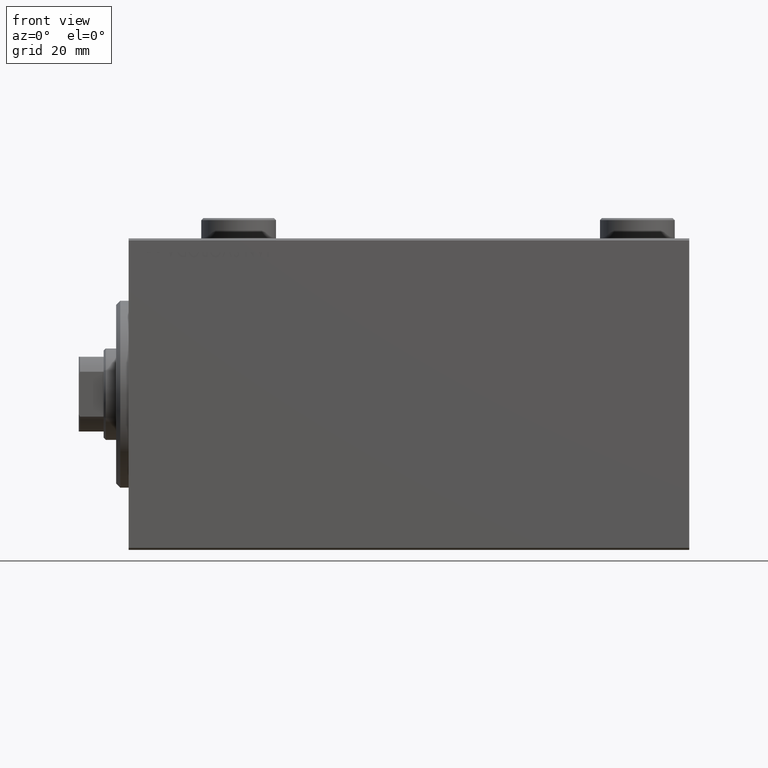
[diagram: clean part render]
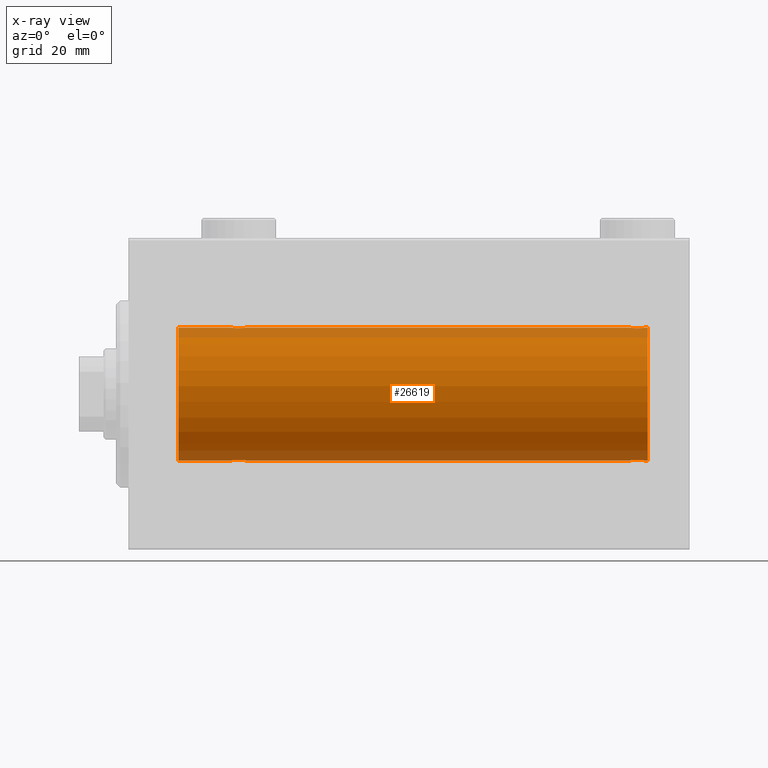
[diagram: x-ray — body ghosted, one internal face saturated and labeled with its STEP entity id]
A machine part, front view, then the same camera in x-ray: the body is ghosted and one INTERNAL B-rep face — a face not visible from any outside direction — is saturated and labeled: STEP entity #26619.
In plain terms, the highlighted cylindrical surface (partial cylindrical patch) has radius 16 mm, axis along (-1, -0, -0).
Its self-contained STEP definition (entity closure, byte-faithful):
#99 = CARTESIAN_POINT ( 'NONE',  ( 27.50320784791317763, -1.735114343256362712, -15.90580722143557502 ) ) ;
#307 = CARTESIAN_POINT ( 'NONE',  ( 121.9833599891894522, -1.936513707523815908, -15.88239801746205870 ) ) ;
#333 = CARTESIAN_POINT ( 'NONE',  ( 124.0976313595719915, -1.231048876942789416, 15.95364199493483071 ) ) ;
#335 = CARTESIAN_POINT ( 'NONE',  ( 24.90236864042802267, -1.231048876942801407, -15.95364199493483426 ) ) ;
#1520 = EDGE_CURVE ( 'NONE', #3629, #35697, #45422, .T. ) ;
#1615 = EDGE_CURVE ( 'NONE', #2116, #12652, #16663, .T. ) ;
#1673 = EDGE_CURVE ( 'NONE', #34976, #28772, #6046, .T. ) ;
#1752 = CARTESIAN_POINT ( 'NONE',  ( 28.49999999999999289, -0.2645044045393371013, 16.00000000000000000 ) ) ;
#2116 = VERTEX_POINT ( 'NONE', #5927 ) ;
#3098 = CARTESIAN_POINT ( 'NONE',  ( 122.7608282034936593, -1.987201773464430499, 15.87613558886576115 ) ) ;
#3100 = CARTESIAN_POINT ( 'NONE',  ( 28.24816627006211078, -1.005876079953899049, -15.97016854943970188 ) ) ;
#3511 = CARTESIAN_POINT ( 'NONE',  ( 120.9023686404279943, -1.231048876942810066, -15.95364199493483426 ) ) ;
#3629 = VERTEX_POINT ( 'NONE', #33905 ) ;
#3766 = CARTESIAN_POINT ( 'NONE',  ( 25.85623329282660166, -1.898087287925298794, -15.88709570026284545 ) ) ;
#4201 = CARTESIAN_POINT ( 'NONE',  ( 123.7202803347841638, -1.589957129871029551, -15.92097237843275259 ) ) ;
#5133 = DIRECTION ( 'NONE',  ( -1.000000000000000000, 0.000000000000000000, 0.000000000000000000 ) ) ;
#5187 = EDGE_CURVE ( 'NONE', #35697, #8183, #33354, .T. ) ;
#5617 = EDGE_CURVE ( 'NONE', #29792, #31596, #42388, .T. ) ;
#5905 = CARTESIAN_POINT ( 'NONE',  ( 11.99999999999999645, 1.959434878635765131E-15, -16.00000000000000000 ) ) ;
#5927 = CARTESIAN_POINT ( 'NONE',  ( 24.50000000000000000, -2.739635037742051899E-23, 16.00000000000000000 ) ) ;
#6046 = LINE ( 'NONE', #37195, #38684 ) ;
#6478 = VECTOR ( 'NONE', #37288, 1000.000000000000000 ) ;
#6789 = CARTESIAN_POINT ( 'NONE',  ( 25.98335998918949841, -1.936513707523809469, -15.88239801746204805 ) ) ;
#6983 = CARTESIAN_POINT ( 'NONE',  ( 122.7637046287817810, -1.986819684797424879, -15.87618369521983830 ) ) ;
#7521 = CARTESIAN_POINT ( 'NONE',  ( 24.75183372993787856, -1.005876079953904600, 15.97016854943970543 ) ) ;
#8183 = VERTEX_POINT ( 'NONE', #5905 ) ;
#8889 = CARTESIAN_POINT ( 'NONE',  ( 28.09763135957198799, -1.231048876942802961, 15.95364199493483781 ) ) ;
#8932 = VERTEX_POINT ( 'NONE', #14542 ) ;
#9126 = CARTESIAN_POINT ( 'NONE',  ( 27.71821872840285295, -1.591545514129674821, 15.92081325887754595 ) ) ;
#9210 = VERTEX_POINT ( 'NONE', #10581 ) ;
#9524 = AXIS2_PLACEMENT_3D ( 'NONE', #22672, #5133, #11840 ) ;
#9562 = CARTESIAN_POINT ( 'NONE',  ( 120.5524885896873144, -0.5244724041436339412, 15.99321727742820975 ) ) ;
#10241 = VERTEX_POINT ( 'NONE', #25055 ) ;
#10250 = CARTESIAN_POINT ( 'NONE',  ( 122.3663333682438434, -1.999904855391108960, 15.87451985347843042 ) ) ;
#10252 = CARTESIAN_POINT ( 'NONE',  ( 24.50000000000000711, -0.2645044045393414311, -16.00000000000000355 ) ) ;
#10448 = CARTESIAN_POINT ( 'NONE',  ( 123.3884614082928550, -1.796613193944152531, -15.89889131367403685 ) ) ;
#10475 = CARTESIAN_POINT ( 'NONE',  ( 123.7182187284028743, -1.591545514129673267, 15.92081325887754595 ) ) ;
#10581 = CARTESIAN_POINT ( 'NONE',  ( 28.49999999999999645, -1.207828523974853969E-15, 16.00000000000000000 ) ) ;
#10668 = CARTESIAN_POINT ( 'NONE',  ( 124.5000000000000284, -0.2611263091397175717, -16.00000000000000711 ) ) ;
#10693 = CARTESIAN_POINT ( 'NONE',  ( 123.1437667071734410, -1.898087287925297462, 15.88709570026284545 ) ) ;
#10695 = CARTESIAN_POINT ( 'NONE',  ( 26.63366663175618498, -1.999904855391105851, -15.87451985347842687 ) ) ;
#10923 = CARTESIAN_POINT ( 'NONE',  ( 121.4967921520868401, -1.735114343256368485, 15.90580722143557502 ) ) ;
#10925 = CARTESIAN_POINT ( 'NONE',  ( 26.23917179650637266, -1.987201773464430055, -15.87613558886576470 ) ) ;
#11129 = CARTESIAN_POINT ( 'NONE',  ( 124.2481662700621143, -1.005876079953903490, -15.97016854943970188 ) ) ;
#11252 = CARTESIAN_POINT ( 'NONE',  ( 124.5000000000000142, 1.959434851248285101E-15, -16.00000000000000000 ) ) ;
#11840 = DIRECTION ( 'NONE',  ( 0.000000000000000000, 0.000000000000000000, 1.000000000000000000 ) ) ;
#12176 = VECTOR ( 'NONE', #40277, 1000.000000000000000 ) ;
#12294 = CARTESIAN_POINT ( 'NONE',  ( 125.0000000000000000, 0.000000000000000000, 16.00000000000000000 ) ) ;
#12303 = EDGE_CURVE ( 'NONE', #8932, #9210, #12834, .T. ) ;
#12652 = VERTEX_POINT ( 'NONE', #19462 ) ;
#12801 = CARTESIAN_POINT ( 'NONE',  ( 27.38592149968496514, -1.797863738508701736, 15.89874935709250892 ) ) ;
#12834 = LINE ( 'NONE', #22761, #6478 ) ;
#13031 = CARTESIAN_POINT ( 'NONE',  ( 28.24678128854693426, -1.008257970366811751, 15.97001510549667103 ) ) ;
#13201 = DIRECTION ( 'NONE',  ( -1.000000000000000000, -0.000000000000000000, -0.000000000000000000 ) ) ;
#13710 = CARTESIAN_POINT ( 'NONE',  ( 25.61407850031505617, -1.797863738508699294, -15.89874935709251247 ) ) ;
#13932 = CIRCLE ( 'NONE', #9524, 16.00000000000000000 ) ;
#14151 = CARTESIAN_POINT ( 'NONE',  ( 123.3859214996849403, -1.797863738508694409, 15.89874935709250892 ) ) ;
#14153 = CARTESIAN_POINT ( 'NONE',  ( 27.38846140829280529, -1.796613193944152753, -15.89889131367403330 ) ) ;
#14353 = CARTESIAN_POINT ( 'NONE',  ( 124.5000000000000142, 1.959434851248285101E-15, -16.00000000000000000 ) ) ;
#14386 = CARTESIAN_POINT ( 'NONE',  ( 25.17895665196594379, -1.507256214862784161, -15.92911555180481820 ) ) ;
#14542 = CARTESIAN_POINT ( 'NONE',  ( 120.5000000000000142, -2.738767290746308786E-23, 16.00000000000000000 ) ) ;
#14663 = CARTESIAN_POINT ( 'NONE',  ( 25.17695155286792286, -1.505501573616977673, 15.92928245046054947 ) ) ;
#15327 = CARTESIAN_POINT ( 'NONE',  ( 11.99999999999999645, 0.000000000000000000, 0.000000000000000000 ) ) ;
#15847 = EDGE_CURVE ( 'NONE', #8932, #28772, #32446, .T. ) ;
#15978 = EDGE_CURVE ( 'NONE', #10241, #34976, #13932, .T. ) ;
#16035 = CARTESIAN_POINT ( 'NONE',  ( 27.14376670717340545, -1.898087287925302125, 15.88709570026284545 ) ) ;
#16039 = EDGE_LOOP ( 'NONE', ( #17305, #31791, #18509, #22105, #22366, #42614, #21302, #25471, #24649, #26334, #30472, #28532 ) ) ;
#16077 = CYLINDRICAL_SURFACE ( 'NONE', #45065, 16.00000000000000000 ) ;
#16263 = CARTESIAN_POINT ( 'NONE',  ( 25.49679215208682592, -1.735114343256370262, 15.90580722143557502 ) ) ;
#16663 = LINE ( 'NONE', #12294, #21014 ) ;
#16676 = EDGE_CURVE ( 'NONE', #31596, #3629, #20385, .T. ) ;
#17168 = CARTESIAN_POINT ( 'NONE',  ( 123.0166400108105336, -1.936513707523807692, 15.88239801746205515 ) ) ;
#17170 = CARTESIAN_POINT ( 'NONE',  ( 27.01937114547927266, -1.935780515549990088, -15.88248768234623576 ) ) ;
#17305 = ORIENTED_EDGE ( 'NONE', *, *, #15978, .F. ) ;
#17366 = CARTESIAN_POINT ( 'NONE',  ( 123.8230484471320665, -1.505501573616976563, -15.92928245046055302 ) ) ;
#17582 = CARTESIAN_POINT ( 'NONE',  ( 124.4475114103127282, -0.5244724041436340523, -15.99321727742820975 ) ) ;
#17841 = CARTESIAN_POINT ( 'NONE',  ( 25.49921634246596014, -1.736521253711144963, -15.90565326803671375 ) ) ;
#18509 = ORIENTED_EDGE ( 'NONE', *, *, #5617, .T. ) ;
#18580 = CARTESIAN_POINT ( 'NONE',  ( 24.50000000000000000, -2.739635037742051899E-23, 16.00000000000000000 ) ) ;
#18587 = CARTESIAN_POINT ( 'NONE',  ( 24.50000000000000000, -2.931586893697621157E-15, -16.00000000000000000 ) ) ;
#19261 = CARTESIAN_POINT ( 'NONE',  ( 26.23629537121825095, -1.986819684797424435, 15.87618369521983475 ) ) ;
#19316 = EDGE_CURVE ( 'NONE', #2116, #9210, #36587, .T. ) ;
#19462 = CARTESIAN_POINT ( 'NONE',  ( 11.99999999999999645, 0.000000000000000000, 16.00000000000000000 ) ) ;
#19934 = CARTESIAN_POINT ( 'NONE',  ( 27.01664001081050515, -1.936513707523814354, 15.88239801746204805 ) ) ;
#20172 = CARTESIAN_POINT ( 'NONE',  ( 26.76082820349364866, -1.987201773464435828, 15.87613558886576470 ) ) ;
#20385 = LINE ( 'NONE', #38149, #45622 ) ;
#20625 = CARTESIAN_POINT ( 'NONE',  ( 28.09938581325380724, -1.228793614424118497, -15.95381972293796835 ) ) ;
#20828 = CARTESIAN_POINT ( 'NONE',  ( 122.2391717965063833, -1.987201773464437160, -15.87613558886576470 ) ) ;
#20854 = CARTESIAN_POINT ( 'NONE',  ( 124.2467812885469272, -1.008257970366809975, 15.97001510549667103 ) ) ;
#21014 = VECTOR ( 'NONE', #13201, 1000.000000000000000 ) ;
#21050 = CARTESIAN_POINT ( 'NONE',  ( 120.5000000000000142, -1.209844185672201777E-14, -16.00000000000000000 ) ) ;
#21074 = CARTESIAN_POINT ( 'NONE',  ( 28.49999999999999645, 1.959434851239213200E-15, -16.00000000000000000 ) ) ;
#21267 = CARTESIAN_POINT ( 'NONE',  ( 121.2817812715971399, -1.591545514129688588, -15.92081325887754417 ) ) ;
#21296 = CARTESIAN_POINT ( 'NONE',  ( 124.5000000000000142, 3.590027768233731054E-15, 16.00000000000000000 ) ) ;
#21302 = ORIENTED_EDGE ( 'NONE', *, *, #40772, .T. ) ;
#21585 = CARTESIAN_POINT ( 'NONE',  ( 24.90061418674620342, -1.228793614424124714, 15.95381972293797368 ) ) ;
#21703 = EDGE_CURVE ( 'NONE', #10241, #29792, #39702, .T. ) ;
#21995 = CARTESIAN_POINT ( 'NONE',  ( 125.0000000000000000, 0.000000000000000000, 16.00000000000000000 ) ) ;
#22105 = ORIENTED_EDGE ( 'NONE', *, *, #16676, .T. ) ;
#22366 = ORIENTED_EDGE ( 'NONE', *, *, #1520, .T. ) ;
#22672 = CARTESIAN_POINT ( 'NONE',  ( 125.0000000000000000, 0.000000000000000000, 0.000000000000000000 ) ) ;
#22761 = CARTESIAN_POINT ( 'NONE',  ( 125.0000000000000000, 0.000000000000000000, 16.00000000000000000 ) ) ;
#23190 = CARTESIAN_POINT ( 'NONE',  ( 26.63080408576578861, -2.000094120337581050, 15.87449600834271735 ) ) ;
#23630 = CARTESIAN_POINT ( 'NONE',  ( 120.9006141867462105, -1.228793614424119829, 15.95381972293797013 ) ) ;
#24325 = CARTESIAN_POINT ( 'NONE',  ( 124.4467400469563927, -0.5272875822566804871, 15.99312147175147381 ) ) ;
#24327 = CARTESIAN_POINT ( 'NONE',  ( 27.14636362870458086, -1.897207606501646104, -15.88720136683947537 ) ) ;
#24520 = CARTESIAN_POINT ( 'NONE',  ( 121.4992163424659850, -1.736521253711160728, -15.90565326803670665 ) ) ;
#24529 = CIRCLE ( 'NONE', #26736, 16.00000000000000000 ) ;
#24649 = ORIENTED_EDGE ( 'NONE', *, *, #19316, .T. ) ;
#24999 = CARTESIAN_POINT ( 'NONE',  ( 121.1769515528679761, -1.505501573616973232, 15.92928245046055657 ) ) ;
#25055 = CARTESIAN_POINT ( 'NONE',  ( 125.0000000000000000, 1.959434878635765131E-15, -16.00000000000000000 ) ) ;
#25200 = CARTESIAN_POINT ( 'NONE',  ( 122.3691959142342256, -2.000094120337584158, -15.87449600834271024 ) ) ;
#25287 = CARTESIAN_POINT ( 'NONE',  ( 24.50000000000000355, -0.2611263091397209579, 16.00000000000000000 ) ) ;
#25471 = ORIENTED_EDGE ( 'NONE', *, *, #1615, .F. ) ;
#26334 = ORIENTED_EDGE ( 'NONE', *, *, #12303, .F. ) ;
#26366 = DIRECTION ( 'NONE',  ( -1.000000000000000000, -0.000000000000000000, -0.000000000000000000 ) ) ;
#26619 = ADVANCED_FACE ( 'NONE', ( #40526 ), #16077, .F. ) ;
#26651 = CARTESIAN_POINT ( 'NONE',  ( 25.27971966521589664, -1.589957129871035768, 15.92097237843274549 ) ) ;
#26736 = AXIS2_PLACEMENT_3D ( 'NONE', #15327, #40236, #33310 ) ;
#27106 = CARTESIAN_POINT ( 'NONE',  ( 120.5000000000000142, -2.738767290746308786E-23, 16.00000000000000000 ) ) ;
#27572 = CARTESIAN_POINT ( 'NONE',  ( 121.6115385917071876, -1.796613193944153641, 15.89889131367402975 ) ) ;
#27799 = CARTESIAN_POINT ( 'NONE',  ( 25.28178127159713995, -1.591545514129671046, -15.92081325887754417 ) ) ;
#27997 = CARTESIAN_POINT ( 'NONE',  ( 121.8562332928266159, -1.898087287925306121, -15.88709570026284545 ) ) ;
#28247 = CARTESIAN_POINT ( 'NONE',  ( 123.5007836575340434, -1.736521253711146962, 15.90565326803670310 ) ) ;
#28249 = CARTESIAN_POINT ( 'NONE',  ( 26.76370462878175260, -1.986819684797417995, -15.87618369521984185 ) ) ;
#28450 = CARTESIAN_POINT ( 'NONE',  ( 120.7532187114530871, -1.008257970366822631, -15.97001510549667458 ) ) ;
#28476 = CARTESIAN_POINT ( 'NONE',  ( 122.6308040857657744, -2.000094120337579273, 15.87449600834271379 ) ) ;
#28478 = CARTESIAN_POINT ( 'NONE',  ( 24.75321871145306218, -1.008257970366813749, -15.97001510549667458 ) ) ;
#28532 = ORIENTED_EDGE ( 'NONE', *, *, #1673, .F. ) ;
#28676 = CARTESIAN_POINT ( 'NONE',  ( 120.5532599530436215, -0.5272875822566934767, -15.99312147175147381 ) ) ;
#28772 = VERTEX_POINT ( 'NONE', #32396 ) ;
#29792 = VERTEX_POINT ( 'NONE', #11252 ) ;
#30351 = CARTESIAN_POINT ( 'NONE',  ( 25.85363637129542624, -1.897207606501653432, 15.88720136683947182 ) ) ;
#30395 = DIRECTION ( 'NONE',  ( 0.000000000000000000, 0.000000000000000000, 1.000000000000000000 ) ) ;
#30472 = ORIENTED_EDGE ( 'NONE', *, *, #15847, .T. ) ;
#31256 = CARTESIAN_POINT ( 'NONE',  ( 26.36919591423421139, -2.000094120337574388, -15.87449600834271024 ) ) ;
#31473 = CARTESIAN_POINT ( 'NONE',  ( 121.9806288545207593, -1.935780515549993419, 15.88248768234623221 ) ) ;
#31596 = VERTEX_POINT ( 'NONE', #36071 ) ;
#31690 = CARTESIAN_POINT ( 'NONE',  ( 28.44751141031268915, -0.5244724041436300555, -15.99321727742820620 ) ) ;
#31791 = ORIENTED_EDGE ( 'NONE', *, *, #21703, .T. ) ;
#31921 = CARTESIAN_POINT ( 'NONE',  ( 122.2362953712182758, -1.986819684797422214, 15.87618369521983830 ) ) ;
#32396 = CARTESIAN_POINT ( 'NONE',  ( 124.5000000000000142, 3.590027768233731054E-15, 16.00000000000000000 ) ) ;
#32446 = B_SPLINE_CURVE_WITH_KNOTS ( 'NONE', 3,
 ( #27106, #41156, #9562, #37694, #23630, #24999, #39052, #10923, #27572, #38380, #31473, #31921, #10250, #28476, #3098, #17168, #10693, #14151, #28247, #10475, #42513, #333, #20854, #24325, #35362, #21296 ),
 .UNSPECIFIED., .F., .F.,
 ( 4, 2, 2, 2, 2, 2, 2, 2, 2, 2, 2, 2, 4 ),
 ( 0.006259031236593860792, 0.007041222816026938489, 0.007823414395460016185, 0.008214510185176554166, 0.008605605974893092147, 0.008996701764609631863, 0.009387797554326169844, 0.009778893344042707825, 0.01016998913375924754, 0.01056108492347578379, 0.01095218071319232177, 0.01173437229262536824, 0.01251656387205841645 ),
 .UNSPECIFIED. ) ;
#33310 = DIRECTION ( 'NONE',  ( 0.000000000000000000, 0.000000000000000000, 1.000000000000000000 ) ) ;
#33332 = CARTESIAN_POINT ( 'NONE',  ( 28.44674004695639624, -0.5272875822566815973, 15.99312147175146670 ) ) ;
#33354 = LINE ( 'NONE', #44402, #12176 ) ;
#33560 = CARTESIAN_POINT ( 'NONE',  ( 27.82104334803405266, -1.507256214862787713, 15.92911555180482530 ) ) ;
#33783 = CARTESIAN_POINT ( 'NONE',  ( 25.61153859170720537, -1.796613193944160969, 15.89889131367403685 ) ) ;
#33905 = CARTESIAN_POINT ( 'NONE',  ( 28.49999999999999645, 1.959434851239213200E-15, -16.00000000000000000 ) ) ;
#34462 = DIRECTION ( 'NONE',  ( -1.000000000000000000, -0.000000000000000000, -0.000000000000000000 ) ) ;
#34702 = CARTESIAN_POINT ( 'NONE',  ( 27.82304844713206293, -1.505501573616970568, -15.92928245046054947 ) ) ;
#34903 = CARTESIAN_POINT ( 'NONE',  ( 122.6336666317562418, -1.999904855391112735, -15.87451985347843042 ) ) ;
#34976 = VERTEX_POINT ( 'NONE', #21995 ) ;
#35144 = CARTESIAN_POINT ( 'NONE',  ( 28.50000000000000355, -0.2611263091397186265, -16.00000000000000355 ) ) ;
#35362 = CARTESIAN_POINT ( 'NONE',  ( 124.4999999999999858, -0.2645044045393384335, 16.00000000000000000 ) ) ;
#35697 = VERTEX_POINT ( 'NONE', #18587 ) ;
#35790 = DIRECTION ( 'NONE',  ( -1.000000000000000000, -0.000000000000000000, -0.000000000000000000 ) ) ;
#35793 = CARTESIAN_POINT ( 'NONE',  ( 123.0193711454792975, -1.935780515549994307, -15.88248768234623221 ) ) ;
#36071 = CARTESIAN_POINT ( 'NONE',  ( 120.5000000000000142, -1.209844185672201777E-14, -16.00000000000000000 ) ) ;
#36587 = B_SPLINE_CURVE_WITH_KNOTS ( 'NONE', 3,
 ( #18580, #25287, #39110, #7521, #21585, #14663, #26651, #16263, #33783, #30351, #40481, #19261, #40710, #23190, #20172, #19934, #16035, #12801, #37255, #9126, #33560, #8889, #13031, #33332, #1752, #40934 ),
 .UNSPECIFIED., .F., .F.,
 ( 4, 2, 2, 2, 2, 2, 2, 2, 2, 2, 2, 2, 4 ),
 ( 0.006259031236593858190, 0.007041222816026928080, 0.007823414395459998838, 0.008214510185176533349, 0.008605605974893067861, 0.008996701764609604107, 0.009387797554326138619, 0.009778893344042673130, 0.01016998913375920938, 0.01056108492347574389, 0.01095218071319227840, 0.01173437229262534048, 0.01251656387205840430 ),
 .UNSPECIFIED. ) ;
#36842 = DIRECTION ( 'NONE',  ( -1.000000000000000000, -0.000000000000000000, -0.000000000000000000 ) ) ;
#37195 = CARTESIAN_POINT ( 'NONE',  ( 125.0000000000000000, 0.000000000000000000, 16.00000000000000000 ) ) ;
#37255 = CARTESIAN_POINT ( 'NONE',  ( 27.50078365753405407, -1.736521253711149182, 15.90565326803671375 ) ) ;
#37288 = DIRECTION ( 'NONE',  ( -1.000000000000000000, -0.000000000000000000, -0.000000000000000000 ) ) ;
#37694 = CARTESIAN_POINT ( 'NONE',  ( 120.7518337299378999, -1.005876079953903490, 15.97016854943970188 ) ) ;
#38149 = CARTESIAN_POINT ( 'NONE',  ( 125.0000000000000000, 1.959434878635765131E-15, -16.00000000000000000 ) ) ;
#38380 = CARTESIAN_POINT ( 'NONE',  ( 121.8536363712954227, -1.897207606501648103, 15.88720136683947182 ) ) ;
#38382 = CARTESIAN_POINT ( 'NONE',  ( 24.50000000000000000, -2.931586893697621157E-15, -16.00000000000000000 ) ) ;
#38580 = CARTESIAN_POINT ( 'NONE',  ( 121.6140785003150881, -1.797863738508706843, -15.89874935709250892 ) ) ;
#38684 = VECTOR ( 'NONE', #26366, 1000.000000000000000 ) ;
#38796 = CARTESIAN_POINT ( 'NONE',  ( 123.1463636287045631, -1.897207606501647881, -15.88720136683947537 ) ) ;
#39052 = CARTESIAN_POINT ( 'NONE',  ( 121.2797196652159357, -1.589957129871034880, 15.92097237843274904 ) ) ;
#39110 = CARTESIAN_POINT ( 'NONE',  ( 24.55248858968731085, -0.5244724041436337192, 15.99321727742820975 ) ) ;
#39252 = CARTESIAN_POINT ( 'NONE',  ( 120.5000000000000142, -0.2645044045393525889, -16.00000000000000711 ) ) ;
#39702 = LINE ( 'NONE', #42713, #43456 ) ;
#40236 = DIRECTION ( 'NONE',  ( -1.000000000000000000, 0.000000000000000000, 0.000000000000000000 ) ) ;
#40277 = DIRECTION ( 'NONE',  ( -1.000000000000000000, -0.000000000000000000, -0.000000000000000000 ) ) ;
#40481 = CARTESIAN_POINT ( 'NONE',  ( 25.98062885452072734, -1.935780515549995862, 15.88248768234623221 ) ) ;
#40526 = FACE_OUTER_BOUND ( 'NONE', #16039, .T. ) ;
#40710 = CARTESIAN_POINT ( 'NONE',  ( 26.36633336824380436, -1.999904855391111402, 15.87451985347842687 ) ) ;
#40772 = EDGE_CURVE ( 'NONE', #8183, #12652, #24529, .T. ) ;
#40934 = CARTESIAN_POINT ( 'NONE',  ( 28.49999999999999645, -1.207828523974853969E-15, 16.00000000000000000 ) ) ;
#41156 = CARTESIAN_POINT ( 'NONE',  ( 120.5000000000000142, -0.2611263091397202363, 16.00000000000000355 ) ) ;
#41844 = CARTESIAN_POINT ( 'NONE',  ( 24.55325995304361086, -0.5272875822566835957, -15.99312147175147736 ) ) ;
#42038 = CARTESIAN_POINT ( 'NONE',  ( 123.5032078479132025, -1.735114343256366043, -15.90580722143557857 ) ) ;
#42259 = CARTESIAN_POINT ( 'NONE',  ( 121.1789566519659473, -1.507256214862793264, -15.92911555180481109 ) ) ;
#42388 = B_SPLINE_CURVE_WITH_KNOTS ( 'NONE', 3,
 ( #14353, #10668, #17582, #11129, #42487, #17366, #4201, #42038, #10448, #38796, #35793, #6983, #34903, #25200, #20828, #307, #27997, #38580, #24520, #21267, #42259, #3511, #28450, #28676, #39252, #21050 ),
 .UNSPECIFIED., .F., .F.,
 ( 4, 2, 2, 2, 2, 2, 2, 2, 2, 2, 2, 2, 4 ),
 ( 0.006259031236593872935, 0.007041222816026943693, 0.007823414395460012716, 0.008214510185176548962, 0.008605605974893081739, 0.008996701764609617985, 0.009387797554326150762, 0.009778893344042687008, 0.01016998913375921978, 0.01056108492347575603, 0.01095218071319228881, 0.01173437229262535957, 0.01251656387205842859 ),
 .UNSPECIFIED. ) ;
#42487 = CARTESIAN_POINT ( 'NONE',  ( 124.0993858132538321, -1.228793614424122271, -15.95381972293797013 ) ) ;
#42513 = CARTESIAN_POINT ( 'NONE',  ( 123.8210433480340953, -1.507256214862775945, 15.92911555180481820 ) ) ;
#42515 = CARTESIAN_POINT ( 'NONE',  ( 27.72028033478412112, -1.589957129871027330, -15.92097237843274904 ) ) ;
#42614 = ORIENTED_EDGE ( 'NONE', *, *, #5187, .T. ) ;
#42713 = CARTESIAN_POINT ( 'NONE',  ( 125.0000000000000000, 1.959434878635765131E-15, -16.00000000000000000 ) ) ;
#43456 = VECTOR ( 'NONE', #35790, 1000.000000000000000 ) ;
#44402 = CARTESIAN_POINT ( 'NONE',  ( 125.0000000000000000, 1.959434878635765131E-15, -16.00000000000000000 ) ) ;
#44650 = CARTESIAN_POINT ( 'NONE',  ( 125.0000000000000000, 0.000000000000000000, 0.000000000000000000 ) ) ;
#45065 = AXIS2_PLACEMENT_3D ( 'NONE', #44650, #36842, #30395 ) ;
#45422 = B_SPLINE_CURVE_WITH_KNOTS ( 'NONE', 3,
 ( #21074, #35144, #31690, #3100, #20625, #34702, #42515, #99, #14153, #24327, #17170, #28249, #10695, #31256, #10925, #6789, #3766, #13710, #17841, #27799, #14386, #335, #28478, #41844, #10252, #38382 ),
 .UNSPECIFIED., .F., .F.,
 ( 4, 2, 2, 2, 2, 2, 2, 2, 2, 2, 2, 2, 4 ),
 ( 0.006259031236593877272, 0.007041222816026943693, 0.007823414395460009246, 0.008214510185176542023, 0.008605605974893074800, 0.008996701764609607577, 0.009387797554326140353, 0.009778893344042673130, 0.01016998913375920591, 0.01056108492347573868, 0.01095218071319227146, 0.01173437229262534222, 0.01251656387205841471 ),
 .UNSPECIFIED. ) ;
#45622 = VECTOR ( 'NONE', #34462, 1000.000000000000000 ) ;